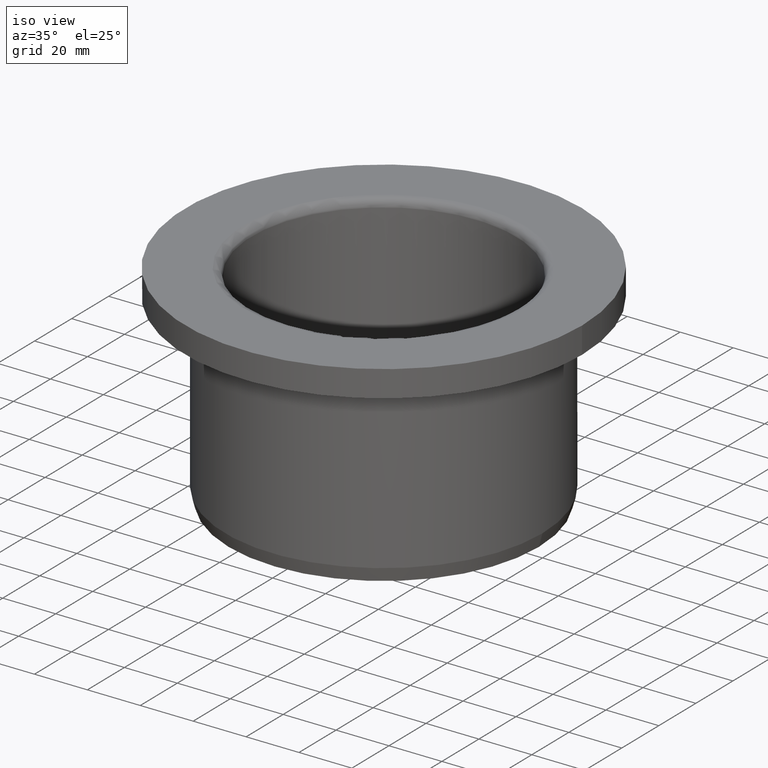
[diagram: clean part render]
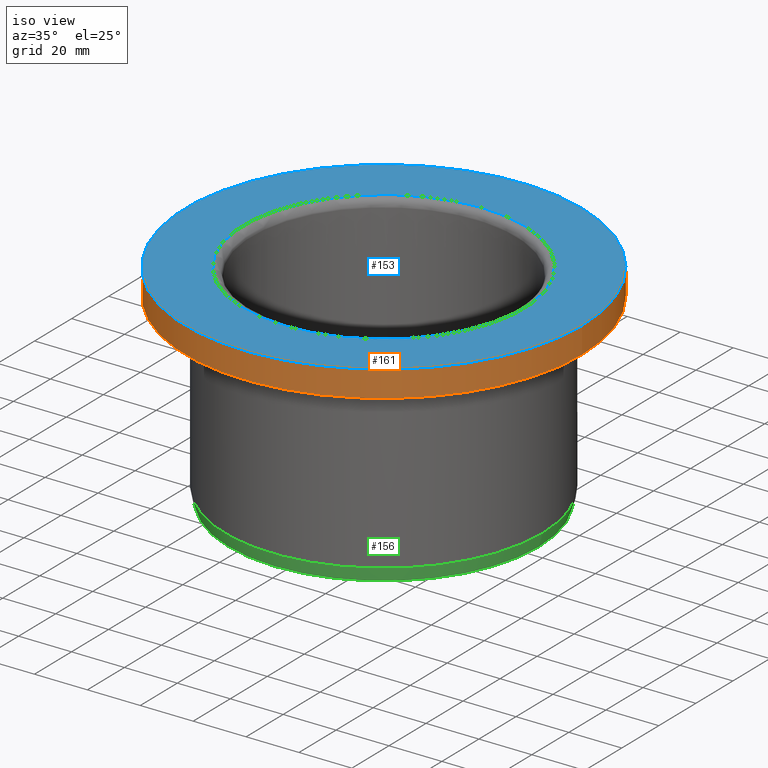
[diagram: same view with three faces highlighted in distinct colors, each labeled with its STEP entity id]
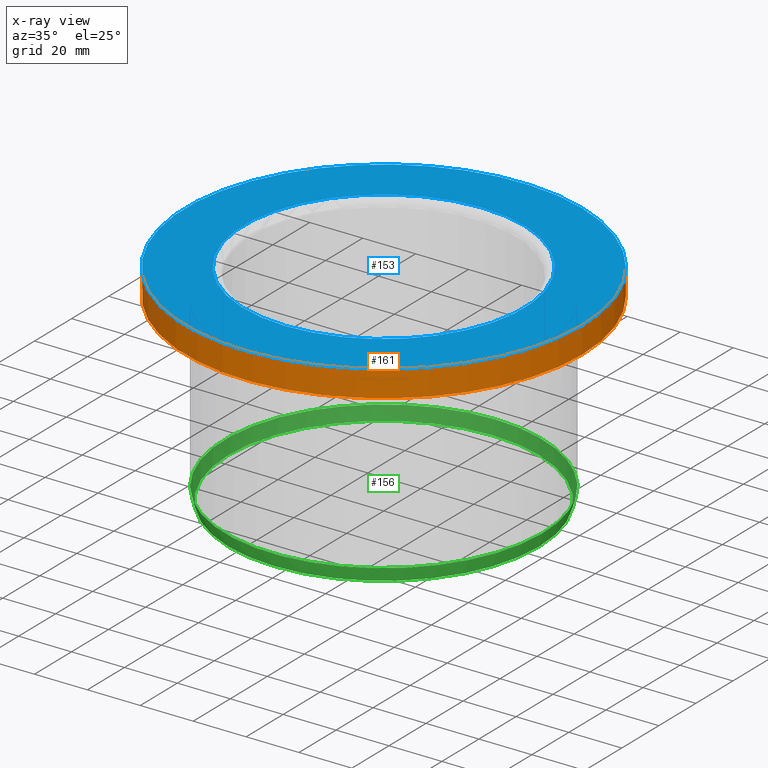
[diagram: x-ray of the same camera — body ghosted, the three highlighted faces saturated]
A machine part, iso view with three faces highlighted in distinct colors.
The next image is the same camera in x-ray (body ghosted, the three faces saturated) — at least one of them is partly hidden behind the body in this view.
Their STEP definitions:

[orange] entity #161 — the highlighted cylindrical surface (bore or boss wall) has radius 75 mm, axis along (0, -0, -1).
#161=ADVANCED_FACE('',(#188,#189),#190,.T.);
#188=FACE_OUTER_BOUND('',#216,.T.);
#189=FACE_OUTER_BOUND('',#217,.T.);
#190=CYLINDRICAL_SURFACE('',#218,0.075);
#216=EDGE_LOOP('',(#259));
#217=EDGE_LOOP('',(#260));
#218=AXIS2_PLACEMENT_3D('',#261,#262,#263);
#259=ORIENTED_EDGE('',*,*,#265,.T.);
#260=ORIENTED_EDGE('',*,*,#269,.F.);
#261=CARTESIAN_POINT('',(0.0,0.0,3.40872898583923E-020));
#262=DIRECTION('',(0.0,-6.12323399573677E-017,-1.0));
#263=DIRECTION('',(0.0,1.0,-6.12323399573677E-017));
#265=EDGE_CURVE('',#275,#275,#276,.T.);
#269=EDGE_CURVE('',#283,#283,#284,.T.);
#275=VERTEX_POINT('',#293);
#276=CIRCLE('',#294,0.075);
#283=VERTEX_POINT('',#301);
#284=CIRCLE('',#302,0.075);
#293=CARTESIAN_POINT('',(0.075,3.46944695195362E-018,0.08));
#294=AXIS2_PLACEMENT_3D('',#312,#313,#314);
#301=CARTESIAN_POINT('',(0.075,3.46944695195362E-018,0.07));
#302=AXIS2_PLACEMENT_3D('',#324,#325,#326);
#312=CARTESIAN_POINT('',(0.0,3.46944695195362E-018,0.08));
#313=DIRECTION('',(0.0,-6.12323399573677E-017,-1.0));
#314=DIRECTION('',(0.0,1.0,-6.12323399573677E-017));
#324=CARTESIAN_POINT('',(0.0,3.46944695195362E-018,0.07));
#325=DIRECTION('',(0.0,-6.12323399573677E-017,-1.0));
#326=DIRECTION('',(0.0,1.0,-6.12323399573677E-017));

[blue] entity #153 — the highlighted planar face has unit normal (0, 0, 1).
#153=ADVANCED_FACE('',(#164,#165),#166,.T.);
#164=FACE_BOUND('',#192,.T.);
#165=FACE_OUTER_BOUND('',#193,.T.);
#166=PLANE('',#194);
#192=EDGE_LOOP('',(#219));
#193=EDGE_LOOP('',(#220));
#194=AXIS2_PLACEMENT_3D('',#221,#222,#223);
#219=ORIENTED_EDGE('',*,*,#264,.T.);
#220=ORIENTED_EDGE('',*,*,#265,.F.);
#221=CARTESIAN_POINT('',(0.075,3.46944695195362E-018,0.08));
#222=DIRECTION('',(0.0,6.12323399573677E-017,1.0));
#223=DIRECTION('',(0.0,-1.0,6.12323399573677E-017));
#264=EDGE_CURVE('',#273,#273,#274,.F.);
#265=EDGE_CURVE('',#275,#275,#276,.T.);
#273=VERTEX_POINT('',#291);
#274=CIRCLE('',#292,0.053);
#275=VERTEX_POINT('',#293);
#276=CIRCLE('',#294,0.075);
#291=CARTESIAN_POINT('',(0.0,-0.053,0.08));
#292=AXIS2_PLACEMENT_3D('',#309,#310,#311);
#293=CARTESIAN_POINT('',(0.075,3.46944695195362E-018,0.08));
#294=AXIS2_PLACEMENT_3D('',#312,#313,#314);
#309=CARTESIAN_POINT('',(0.0,4.89858719658941E-018,0.08));
#310=DIRECTION('',(0.0,6.12323399573677E-017,1.0));
#311=DIRECTION('',(0.0,-1.0,6.12323399573677E-017));
#312=CARTESIAN_POINT('',(0.0,3.46944695195362E-018,0.08));
#313=DIRECTION('',(0.0,-6.12323399573677E-017,-1.0));
#314=DIRECTION('',(0.0,1.0,-6.12323399573677E-017));

[green] entity #156 — the highlighted conical surface has half-angle 15 deg.
#156=ADVANCED_FACE('',(#173,#174),#175,.T.);
#173=FACE_OUTER_BOUND('',#201,.T.);
#174=FACE_BOUND('',#202,.T.);
#175=CONICAL_SURFACE('',#203,0.0586602540378444,0.261799387799146);
#201=EDGE_LOOP('',(#234));
#202=EDGE_LOOP('',(#235));
#203=AXIS2_PLACEMENT_3D('',#236,#237,#238);
#234=ORIENTED_EDGE('',*,*,#267,.T.);
#235=ORIENTED_EDGE('',*,*,#270,.F.);
#236=CARTESIAN_POINT('',(0.0,0.0,1.046790830847E-018));
#237=DIRECTION('',(-0.0,6.12323399573677E-017,1.0));
#238=DIRECTION('',(0.0,-1.0,6.12323399573677E-017));
#267=EDGE_CURVE('',#279,#279,#280,.T.);
#270=EDGE_CURVE('',#285,#285,#286,.T.);
#279=VERTEX_POINT('',#297);
#280=CIRCLE('',#298,0.06);
#285=VERTEX_POINT('',#303);
#286=CIRCLE('',#304,0.0586602540378444);
#297=CARTESIAN_POINT('',(0.06,0.0,0.005));
#298=AXIS2_PLACEMENT_3D('',#318,#319,#320);
#303=CARTESIAN_POINT('',(0.0586602540378444,0.0,1.046790830847E-018));
#304=AXIS2_PLACEMENT_3D('',#327,#328,#329);
#318=CARTESIAN_POINT('',(0.0,0.0,0.005));
#319=DIRECTION('',(0.0,-6.12323399573677E-017,-1.0));
#320=DIRECTION('',(0.0,1.0,-6.12323399573677E-017));
#327=CARTESIAN_POINT('',(0.0,0.0,1.046790830847E-018));
#328=DIRECTION('',(0.0,-6.12323399573677E-017,-1.0));
#329=DIRECTION('',(0.0,1.0,-6.12323399573677E-017));